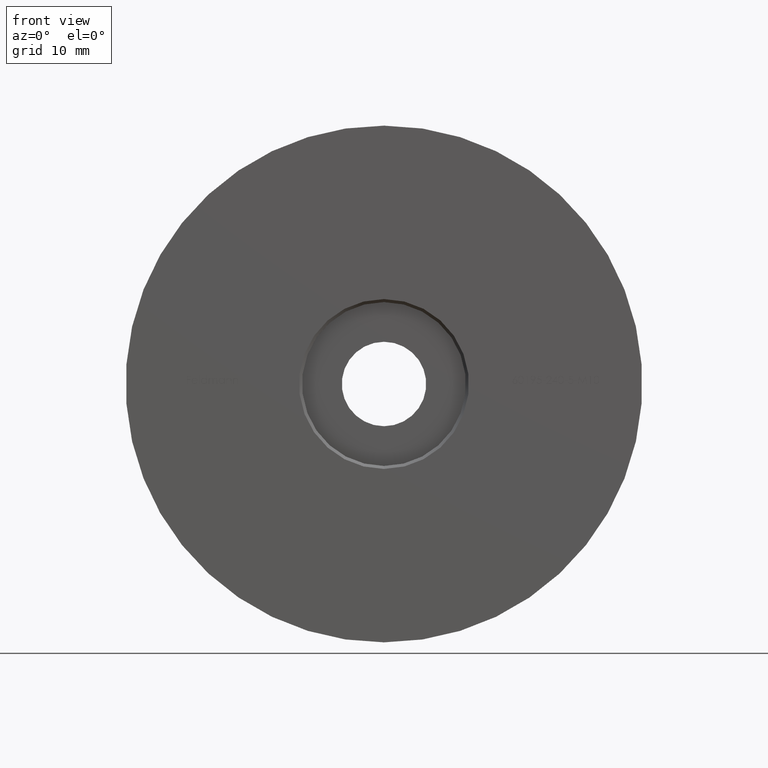
[diagram: clean part render]
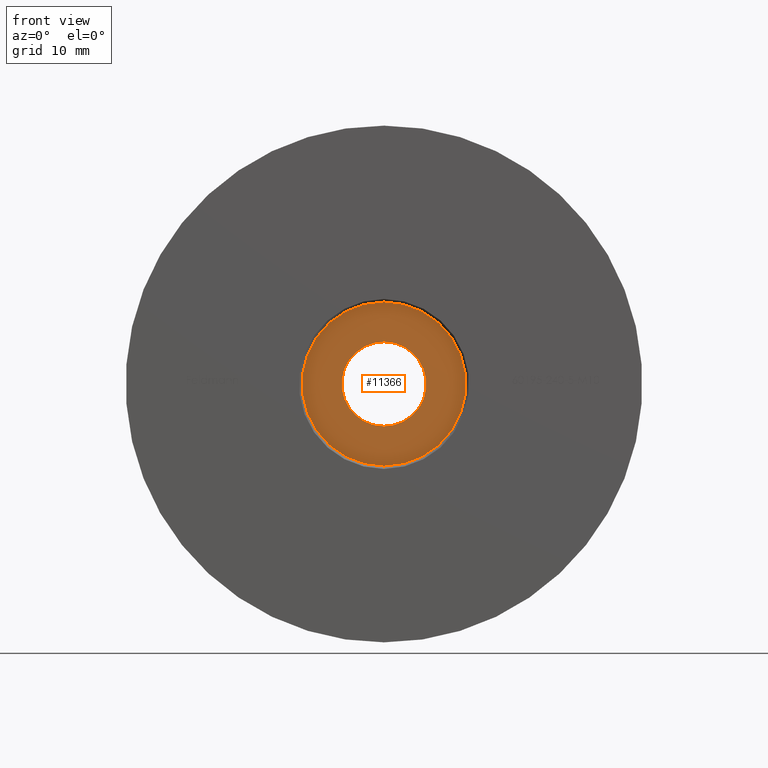
[diagram: same view with one face highlighted and labeled with its STEP entity id]
A machine part, front view. The second image highlights one B-rep face of the part: STEP entity #11366.
In plain terms, the highlighted planar face has unit normal (0, -1, -0).
Its self-contained STEP definition (entity closure, byte-faithful):
#803 = DIRECTION ( 'NONE',  ( 0.000000000000000000, 0.000000000000000000, -1.000000000000000000 ) ) ;
#958 = DIRECTION ( 'NONE',  ( 0.000000000000000000, 0.000000000000000000, -1.000000000000000000 ) ) ;
#1504 = VERTEX_POINT ( 'NONE', #7466 ) ;
#1595 = CARTESIAN_POINT ( 'NONE',  ( 0.000000000000000000, -1.500000000000001776, -8.249999999999998224 ) ) ;
#1920 = ORIENTED_EDGE ( 'NONE', *, *, #3734, .T. ) ;
#2657 = AXIS2_PLACEMENT_3D ( 'NONE', #9067, #10267, #4379 ) ;
#3086 = CARTESIAN_POINT ( 'NONE',  ( 1.010333609296566353E-15, -1.500000000000001776, 8.249999999999998224 ) ) ;
#3251 = CIRCLE ( 'NONE', #12734, 4.249999999999993783 ) ;
#3365 = DIRECTION ( 'NONE',  ( 0.000000000000000000, 0.000000000000000000, -1.000000000000000000 ) ) ;
#3616 = EDGE_CURVE ( 'NONE', #11532, #1504, #3251, .T. ) ;
#3679 = DIRECTION ( 'NONE',  ( 0.000000000000000000, 0.000000000000000000, -1.000000000000000000 ) ) ;
#3734 = EDGE_CURVE ( 'NONE', #14358, #11882, #9873, .T. ) ;
#4373 = ORIENTED_EDGE ( 'NONE', *, *, #3616, .F. ) ;
#4379 = DIRECTION ( 'NONE',  ( 0.000000000000000000, 0.000000000000000000, -1.000000000000000000 ) ) ;
#4646 = EDGE_LOOP ( 'NONE', ( #1920, #4984 ) ) ;
#4984 = ORIENTED_EDGE ( 'NONE', *, *, #10970, .T. ) ;
#5008 = AXIS2_PLACEMENT_3D ( 'NONE', #15118, #13169, #3365 ) ;
#5308 = CIRCLE ( 'NONE', #2657, 8.249999999999998224 ) ;
#5780 = EDGE_LOOP ( 'NONE', ( #7120, #4373 ) ) ;
#5882 = EDGE_CURVE ( 'NONE', #1504, #11532, #12982, .T. ) ;
#6859 = DIRECTION ( 'NONE',  ( -0.000000000000000000, -1.000000000000000000, -0.000000000000000000 ) ) ;
#7022 = CARTESIAN_POINT ( 'NONE',  ( 0.000000000000000000, -1.500000000000001776, 0.000000000000000000 ) ) ;
#7120 = ORIENTED_EDGE ( 'NONE', *, *, #5882, .F. ) ;
#7466 = CARTESIAN_POINT ( 'NONE',  ( 0.000000000000000000, -1.500000000000001776, 4.249999999999993783 ) ) ;
#7616 = FACE_BOUND ( 'NONE', #5780, .T. ) ;
#9067 = CARTESIAN_POINT ( 'NONE',  ( 0.000000000000000000, -1.500000000000001776, 0.000000000000000000 ) ) ;
#9835 = CARTESIAN_POINT ( 'NONE',  ( 0.000000000000000000, -1.500000000000001776, 0.000000000000000000 ) ) ;
#9873 = CIRCLE ( 'NONE', #15459, 8.249999999999998224 ) ;
#10267 = DIRECTION ( 'NONE',  ( -0.000000000000000000, -1.000000000000000000, -0.000000000000000000 ) ) ;
#10890 = DIRECTION ( 'NONE',  ( -0.000000000000000000, -1.000000000000000000, -0.000000000000000000 ) ) ;
#10970 = EDGE_CURVE ( 'NONE', #11882, #14358, #5308, .T. ) ;
#11030 = FACE_OUTER_BOUND ( 'NONE', #4646, .T. ) ;
#11366 = ADVANCED_FACE ( 'NONE', ( #7616, #11030 ), #15338, .T. ) ;
#11532 = VERTEX_POINT ( 'NONE', #13016 ) ;
#11864 = DIRECTION ( 'NONE',  ( -0.000000000000000000, -1.000000000000000000, -0.000000000000000000 ) ) ;
#11882 = VERTEX_POINT ( 'NONE', #3086 ) ;
#12734 = AXIS2_PLACEMENT_3D ( 'NONE', #9835, #10890, #3679 ) ;
#12982 = CIRCLE ( 'NONE', #14769, 4.249999999999993783 ) ;
#13016 = CARTESIAN_POINT ( 'NONE',  ( 5.204748896376243797E-16, -1.500000000000001776, -4.249999999999993783 ) ) ;
#13169 = DIRECTION ( 'NONE',  ( 0.000000000000000000, -1.000000000000000000, -0.000000000000000000 ) ) ;
#14358 = VERTEX_POINT ( 'NONE', #1595 ) ;
#14769 = AXIS2_PLACEMENT_3D ( 'NONE', #15354, #6859, #803 ) ;
#15118 = CARTESIAN_POINT ( 'NONE',  ( 8.249999999999998224, -1.500000000000002220, 0.000000000000000000 ) ) ;
#15338 = PLANE ( 'NONE',  #5008 ) ;
#15354 = CARTESIAN_POINT ( 'NONE',  ( 0.000000000000000000, -1.500000000000001776, 0.000000000000000000 ) ) ;
#15459 = AXIS2_PLACEMENT_3D ( 'NONE', #7022, #11864, #958 ) ;